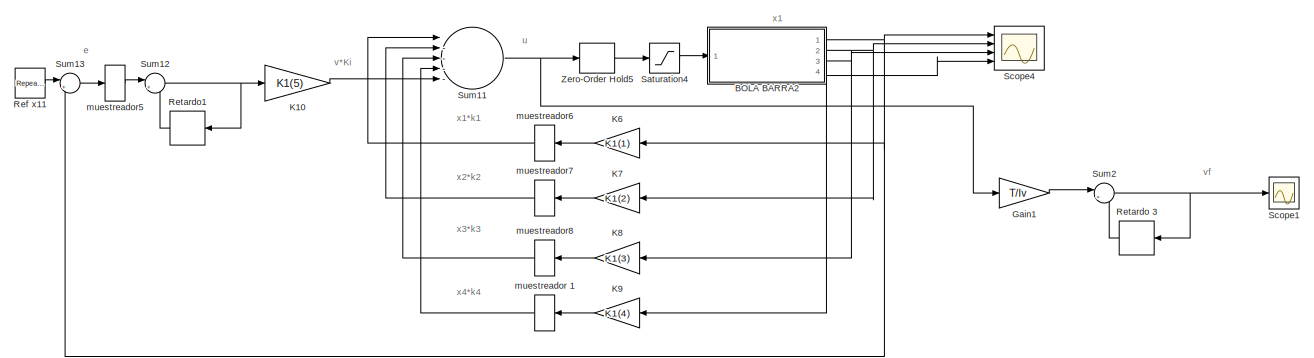
[diagram: root canvas - part 1/2, full width, top band]
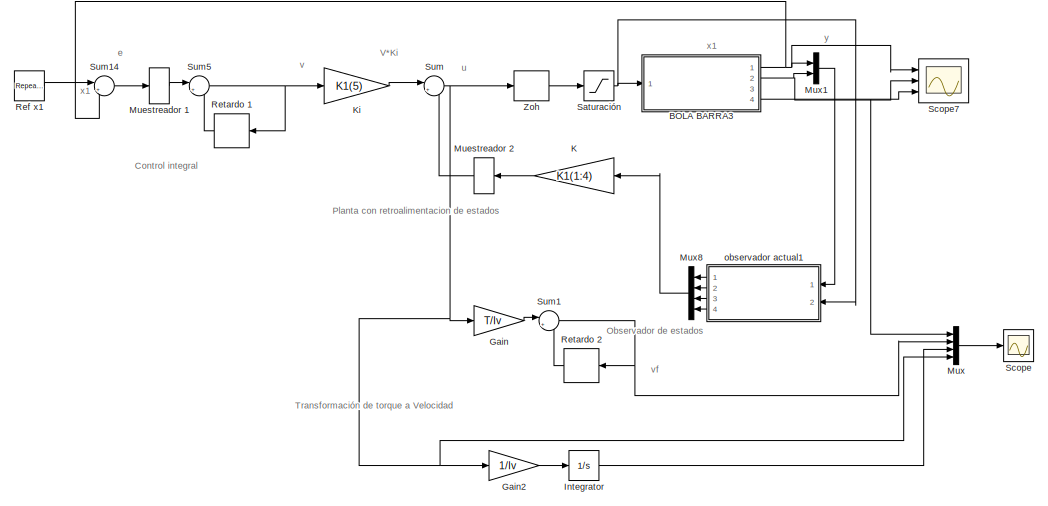
[diagram: root canvas - part 2/2, full width, bottom band]
MODEL slx_6233a8b4bf29
KIND model
CONFIG AbsTol = auto
CONFIG FixedStep = auto
CONFIG MaxStep = auto
CONFIG MinStep = auto
CONFIG RelTol = 1e-3
CONFIG SampleTimeConstraint = Unconstrained
CONFIG Solver = ode45
CONFIG SolverMode = Auto
CONFIG SolverName = ode45
CONFIG StartTime = 0.0
CONFIG StopTime = 180
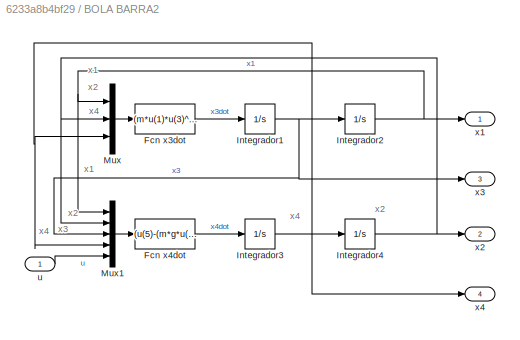
BLOCK [SubSystem] BOLA BARRA2
  Ports = [1, 4]
  RequestExecContextInheritance = off
BLOCK [Fcn] BOLA BARRA2/Fcn x3dot
  Expr = (m*u(1)*u(3)^2-m*g*sin(u(2))/(m+(Ib/R^2)))
BLOCK [Fcn] BOLA BARRA2/Fcn x4dot
  Expr = (u(5)-(m*g*u(1)*cos(u(2)))-(2*m*u(1)*u(3)*u(4)))/((Iv+(m*u(1)^2)))
BLOCK [Integrator] BOLA BARRA2/Integrador1
  Ports = [1, 1]
BLOCK [Integrator] BOLA BARRA2/Integrador2
  InitialCondition = -10.2e-3
  Ports = [1, 1]
BLOCK [Integrator] BOLA BARRA2/Integrador3
  Ports = [1, 1]
BLOCK [Integrator] BOLA BARRA2/Integrador4
  Ports = [1, 1]
BLOCK [Mux] BOLA BARRA2/Mux
  DisplayOption = bar
  Inputs = 3
  Ports = [3, 1]
BLOCK [Mux] BOLA BARRA2/Mux1
  DisplayOption = bar
  Inputs = 5
  Ports = [5, 1]
BLOCK [Inport] BOLA BARRA2/u
  IconDisplay = Port number
BLOCK [Outport] BOLA BARRA2/x1
  IconDisplay = Port number
BLOCK [Outport] BOLA BARRA2/x2
  IconDisplay = Port number
  Port = 2
BLOCK [Outport] BOLA BARRA2/x3
  IconDisplay = Port number
  Port = 3
BLOCK [Outport] BOLA BARRA2/x4
  IconDisplay = Port number
  Port = 4
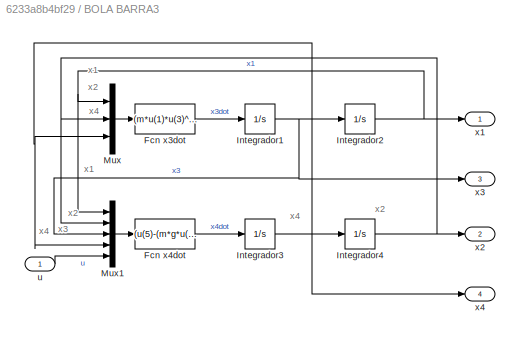
BLOCK [SubSystem] BOLA BARRA3
  Ports = [1, 4]
  RequestExecContextInheritance = off
BLOCK [Fcn] BOLA BARRA3/Fcn x3dot
  Expr = (m*u(1)*u(3)^2-m*g*sin(u(2))/(m+(Ib/R^2)))
BLOCK [Fcn] BOLA BARRA3/Fcn x4dot
  Expr = (u(5)-(m*g*u(1)*cos(u(2)))-(2*m*u(1)*u(3)*u(4)))/((Iv+(m*u(1)^2)))
BLOCK [Integrator] BOLA BARRA3/Integrador1
  Ports = [1, 1]
BLOCK [Integrator] BOLA BARRA3/Integrador2
  InitialCondition = -10.2e-3
  Ports = [1, 1]
BLOCK [Integrator] BOLA BARRA3/Integrador3
  Ports = [1, 1]
BLOCK [Integrator] BOLA BARRA3/Integrador4
  Ports = [1, 1]
BLOCK [Mux] BOLA BARRA3/Mux
  DisplayOption = bar
  Inputs = 3
  Ports = [3, 1]
BLOCK [Mux] BOLA BARRA3/Mux1
  DisplayOption = bar
  Inputs = 5
  Ports = [5, 1]
BLOCK [Inport] BOLA BARRA3/u
  IconDisplay = Port number
BLOCK [Outport] BOLA BARRA3/x1
  IconDisplay = Port number
BLOCK [Outport] BOLA BARRA3/x2
  IconDisplay = Port number
  Port = 2
BLOCK [Outport] BOLA BARRA3/x3
  IconDisplay = Port number
  Port = 3
BLOCK [Outport] BOLA BARRA3/x4
  IconDisplay = Port number
  Port = 4
BLOCK [Gain] Gain
  Gain = T/Iv
  OutDataTypeStr = Inherit: Inherit via internal rule
  ParamDataTypeStr = Inherit: Inherit via internal rule
  SaturateOnIntegerOverflow = off
BLOCK [Gain] Gain1
  Gain = T/Iv
  OutDataTypeStr = Inherit: Inherit via internal rule
  ParamDataTypeStr = Inherit: Inherit via internal rule
  SaturateOnIntegerOverflow = off
BLOCK [Gain] Gain2
  Gain = 1/Iv
  OutDataTypeStr = Inherit: Inherit via internal rule
  ParamDataTypeStr = Inherit: Inherit via internal rule
  SaturateOnIntegerOverflow = off
BLOCK [Integrator] Integrator
  Ports = [1, 1]
BLOCK [Gain] K
  Gain = K1(1:4)
  Multiplication = Matrix(K*u)
  OutDataTypeStr = Inherit: Inherit via internal rule
  ParamDataTypeStr = Inherit: Inherit via internal rule
  SaturateOnIntegerOverflow = off
BLOCK [Gain] K10
  Gain = K1(5)
  OutDataTypeStr = Inherit: Inherit via internal rule
  ParamDataTypeStr = Inherit: Inherit via internal rule
  SaturateOnIntegerOverflow = off
BLOCK [Gain] K6
  Gain = K1(1)
  OutDataTypeStr = Inherit: Inherit via internal rule
  ParamDataTypeStr = Inherit: Inherit via internal rule
  SaturateOnIntegerOverflow = off
BLOCK [Gain] K7
  Gain = K1(2)
  OutDataTypeStr = Inherit: Inherit via internal rule
  ParamDataTypeStr = Inherit: Inherit via internal rule
  SaturateOnIntegerOverflow = off
BLOCK [Gain] K8
  Gain = K1(3)
  OutDataTypeStr = Inherit: Inherit via internal rule
  ParamDataTypeStr = Inherit: Inherit via internal rule
  SaturateOnIntegerOverflow = off
BLOCK [Gain] K9
  Gain = K1(4)
  OutDataTypeStr = Inherit: Inherit via internal rule
  ParamDataTypeStr = Inherit: Inherit via internal rule
  SaturateOnIntegerOverflow = off
BLOCK [Gain] Ki
  Gain = K1(5)
  OutDataTypeStr = Inherit: Inherit via internal rule
  ParamDataTypeStr = Inherit: Inherit via internal rule
  SaturateOnIntegerOverflow = off
BLOCK [DiscreteFilter] Muestreador 1
  Denominator = [1]
  InputPortMap = u0
  Ports = [1, 1]
  SampleTime = T
BLOCK [DiscreteFilter] Muestreador 2
  Denominator = [1]
  InputPortMap = u0
  Ports = [1, 1]
  SampleTime = T
BLOCK [Mux] Mux
  DisplayOption = bar
  Ports = [4, 1]
BLOCK [Mux] Mux1
  DisplayOption = bar
  Inputs = 2
  Ports = [2, 1]
BLOCK [Mux] Mux8
  DisplayOption = bar
  Ports = [4, 1]
BLOCK [Reference] Ref x1  REF=simulink/Sources/Repeating
Sequence
Stair
  ConRadixGroup = Best Precision: Vector-wise
  LockScale = off
  OutDataType = fixdt(0,8)
  OutDataTypeStr = double
  OutMax = []
  OutMin = []
  OutScaling = 2^-12
  OutValues = [0.2  0.4 -0.4 -0.1 -0.3].'
  OutputDataTypeScalingMode = double
  Ports = [0, 1]
  SourceBlock = simulink/Sources/Repeating\nSequence\nStair
  SourceType = Repeating Sequence Stair
  tsamp = 36
BLOCK [Reference] Ref x11  REF=simulink/Sources/Repeating
Sequence
Stair
  ConRadixGroup = Best Precision: Vector-wise
  LockScale = off
  OutDataType = fixdt(0,8)
  OutDataTypeStr = double
  OutMax = []
  OutMin = []
  OutScaling = 2^-12
  OutValues = [0.2  0.4 -0.4 -0.1 -0.3].'
  OutputDataTypeScalingMode = double
  Ports = [0, 1]
  SourceBlock = simulink/Sources/Repeating\nSequence\nStair
  SourceType = Repeating Sequence Stair
  tsamp = 36
BLOCK [Delay] Retardo 1
  DelayLength = 1
  InputPortMap = u0
  Ports = [1, 1]
  SampleTime = T
BLOCK [Delay] Retardo 2
  DelayLength = 1
  InitialCondition = 0
  InputPortMap = u0
  Ports = [1, 1]
  SampleTime = T
BLOCK [Delay] Retardo 3
  DelayLength = 1
  InitialCondition = 0
  InputPortMap = u0
  Ports = [1, 1]
  SampleTime = T
BLOCK [Delay] Retardo1
  DelayLength = 1
  InputPortMap = u0
  Ports = [1, 1]
  SampleTime = T
BLOCK [Saturate] Saturación
  InputPortMap = u0
  LowerLimit = -2.11
  Ports = [1, 1]
  UpperLimit = 2.11
BLOCK [Saturate] Saturation4
  InputPortMap = u0
  LowerLimit = -2.11
  Ports = [1, 1]
  UpperLimit = 2.11
BLOCK [Scope] Scope
  Floating = off
  NumInputPorts = 1
  Ports = [1]
  TimeRange = 16
  YMax = 51.15191986644406
  YMin = 11.15191986644406
BLOCK [Scope] Scope1
  Floating = off
  NumInputPorts = 1
  Ports = [1]
  SaveName = ScopeData1
BLOCK [Scope] Scope4
  DataFormat = StructureWithTime
  Floating = off
  LimitDataPoints = off
  NumInputPorts = 4
  Ports = [4]
  SampleTime = 0
  SaveName = datos
  SaveToWorkspace = on
  YMax = 5~5~5~5
  YMin = -5~-5~-5~-5
BLOCK [Scope] Scope7
  DataFormat = StructureWithTime
  Floating = off
  LimitDataPoints = off
  NumInputPorts = 3
  Ports = [3]
  SampleTime = 0
  SaveName = datos1
  SaveToWorkspace = on
  YMax = 5~5~5
  YMin = -5~-5~-5
BLOCK [Sum] Sum
  IconShape = round
  InputSameDT = off
  Inputs = |+-
  OutDataTypeStr = Inherit: Inherit via internal rule
  Ports = [2, 1]
  SaturateOnIntegerOverflow = off
BLOCK [Sum] Sum1
  IconShape = round
  InputSameDT = off
  Inputs = |++
  OutDataTypeStr = Inherit: Inherit via internal rule
  Ports = [2, 1]
  SaturateOnIntegerOverflow = off
BLOCK [Sum] Sum11
  InputSameDT = off
  Inputs = |----+
  OutDataTypeStr = Inherit: Inherit via internal rule
  Ports = [5, 1]
  SaturateOnIntegerOverflow = off
BLOCK [Sum] Sum12
  IconShape = round
  InputSameDT = off
  Inputs = |++
  OutDataTypeStr = Inherit: Inherit via internal rule
  Ports = [2, 1]
  SaturateOnIntegerOverflow = off
BLOCK [Sum] Sum13
  IconShape = round
  InputSameDT = off
  Inputs = |+-
  OutDataTypeStr = Inherit: Inherit via internal rule
  Ports = [2, 1]
  SaturateOnIntegerOverflow = off
BLOCK [Sum] Sum14
  IconShape = round
  InputSameDT = off
  Inputs = |+-
  OutDataTypeStr = Inherit: Inherit via internal rule
  Ports = [2, 1]
  SaturateOnIntegerOverflow = off
BLOCK [Sum] Sum2
  IconShape = round
  InputSameDT = off
  Inputs = |++
  OutDataTypeStr = Inherit: Inherit via internal rule
  Ports = [2, 1]
  SaturateOnIntegerOverflow = off
BLOCK [Sum] Sum5
  IconShape = round
  InputSameDT = off
  Inputs = |++
  OutDataTypeStr = Inherit: Inherit via internal rule
  Ports = [2, 1]
  SaturateOnIntegerOverflow = off
BLOCK [ZeroOrderHold] Zero-Order Hold5
  SampleTime = T
BLOCK [ZeroOrderHold] Zoh
  SampleTime = T
BLOCK [DiscreteFilter] muestreador 1
  Denominator = [1]
  InputPortMap = u0
  Ports = [1, 1]
  SampleTime = T
BLOCK [DiscreteFilter] muestreador5
  Denominator = [1]
  InputPortMap = u0
  Ports = [1, 1]
  SampleTime = T
BLOCK [DiscreteFilter] muestreador6
  Denominator = [1]
  InputPortMap = u0
  Ports = [1, 1]
  SampleTime = T
BLOCK [DiscreteFilter] muestreador7
  Denominator = [1]
  InputPortMap = u0
  Ports = [1, 1]
  SampleTime = T
BLOCK [DiscreteFilter] muestreador8
  Denominator = [1]
  InputPortMap = u0
  Ports = [1, 1]
  SampleTime = T
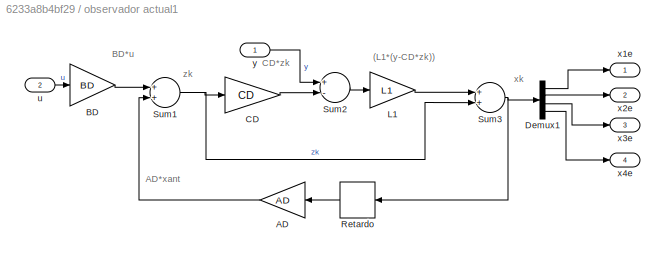
BLOCK [SubSystem] observador actual1
  Ports = [2, 4]
  RequestExecContextInheritance = off
BLOCK [Gain] observador actual1/AD
  Gain = AD
  Multiplication = Matrix(K*u)
  OutDataTypeStr = Inherit: Inherit via internal rule
  ParamDataTypeStr = Inherit: Inherit via internal rule
  SaturateOnIntegerOverflow = off
BLOCK [Gain] observador actual1/BD
  Gain = BD
  Multiplication = Matrix(K*u)
  OutDataTypeStr = Inherit: Inherit via internal rule
  ParamDataTypeStr = Inherit: Inherit via internal rule
  SaturateOnIntegerOverflow = off
BLOCK [Gain] observador actual1/CD
  Gain = CD
  Multiplication = Matrix(K*u)
  OutDataTypeStr = Inherit: Inherit via internal rule
  ParamDataTypeStr = Inherit: Inherit via internal rule
  SaturateOnIntegerOverflow = off
BLOCK [Demux] observador actual1/Demux1
  DisplayOption = bar
  Ports = [1, 4]
BLOCK [Gain] observador actual1/L1
  Gain = L1
  Multiplication = Matrix(K*u)
  OutDataTypeStr = Inherit: Inherit via internal rule
  ParamDataTypeStr = Inherit: Inherit via internal rule
  SaturateOnIntegerOverflow = off
BLOCK [Delay] observador actual1/Retardo
  DelayLength = 1
  InitialCondition = [0 0 0 0]
  InputPortMap = u0
  Ports = [1, 1]
  SampleTime = T
BLOCK [Sum] observador actual1/Sum1
  InputSameDT = off
  OutDataTypeStr = Inherit: Inherit via internal rule
  Ports = [2, 1]
  SaturateOnIntegerOverflow = off
BLOCK [Sum] observador actual1/Sum2
  InputSameDT = off
  Inputs = +-
  OutDataTypeStr = Inherit: Inherit via internal rule
  Ports = [2, 1]
  SaturateOnIntegerOverflow = off
BLOCK [Sum] observador actual1/Sum3
  InputSameDT = off
  OutDataTypeStr = Inherit: Inherit via internal rule
  Ports = [2, 1]
  SaturateOnIntegerOverflow = off
BLOCK [Inport] observador actual1/u
  IconDisplay = Port number
  Port = 2
BLOCK [Outport] observador actual1/x1e
  IconDisplay = Port number
BLOCK [Outport] observador actual1/x2e
  IconDisplay = Port number
  Port = 2
BLOCK [Outport] observador actual1/x3e
  IconDisplay = Port number
  Port = 3
BLOCK [Outport] observador actual1/x4e
  IconDisplay = Port number
  Port = 4
BLOCK [Inport] observador actual1/y
  IconDisplay = Port number
ANNOTATION (root): e
ANNOTATION (root): u
ANNOTATION (root): v
ANNOTATION (root): vf
ANNOTATION (root): x1
ANNOTATION (root): y
ANNOTATION (root): Control integral
ANNOTATION (root): Observador de estados
ANNOTATION (root): Planta con retroalimentacion de estados
ANNOTATION (root): Transformación de torque a Velocidad
ANNOTATION (root): V*Ki
ANNOTATION (root): v*Ki
ANNOTATION (root): x1*k1
ANNOTATION (root): x2*k2
ANNOTATION (root): x3*k3
ANNOTATION (root): x4*k4
ANNOTATION BOLA BARRA2: x1
ANNOTATION BOLA BARRA2: x2
ANNOTATION BOLA BARRA2: x3
ANNOTATION BOLA BARRA2: x4
ANNOTATION BOLA BARRA3: x1
ANNOTATION BOLA BARRA3: x2
ANNOTATION BOLA BARRA3: x3
ANNOTATION BOLA BARRA3: x4
ANNOTATION observador actual1: (L1*(y-CD*zk))
ANNOTATION observador actual1: AD*xant
ANNOTATION observador actual1: BD*u
ANNOTATION observador actual1: CD*zk
ANNOTATION observador actual1: xk
ANNOTATION observador actual1: zk
LINE BOLA BARRA2/Fcn x3dot:1 -> BOLA BARRA2/Integrador1:1
LINE BOLA BARRA2/Fcn x4dot:1 -> BOLA BARRA2/Integrador3:1
NET BOLA BARRA2/Integrador1:1 -> BOLA BARRA2/Integrador2:1, BOLA BARRA2/Mux1:3, BOLA BARRA2/x3:1
NET BOLA BARRA2/Integrador2:1 -> BOLA BARRA2/Mux1:1, BOLA BARRA2/Mux:1, BOLA BARRA2/x1:1
NET BOLA BARRA2/Integrador3:1 -> BOLA BARRA2/Integrador4:1, BOLA BARRA2/Mux1:4, BOLA BARRA2/Mux:3, BOLA BARRA2/x4:1
NET BOLA BARRA2/Integrador4:1 -> BOLA BARRA2/Mux1:2, BOLA BARRA2/Mux:2, BOLA BARRA2/x2:1
LINE BOLA BARRA2/Mux1:1 -> BOLA BARRA2/Fcn x4dot:1
LINE BOLA BARRA2/Mux:1 -> BOLA BARRA2/Fcn x3dot:1
LINE BOLA BARRA2/u:1 -> BOLA BARRA2/Mux1:5
NET BOLA BARRA2:1 -> K6:1, Scope4:1, Sum13:2
NET BOLA BARRA2:2 -> K7:1, Scope4:2
NET BOLA BARRA2:3 -> K8:1, Scope4:3
NET BOLA BARRA2:4 -> K9:1, Scope4:4
LINE BOLA BARRA3/Fcn x3dot:1 -> BOLA BARRA3/Integrador1:1
LINE BOLA BARRA3/Fcn x4dot:1 -> BOLA BARRA3/Integrador3:1
NET BOLA BARRA3/Integrador1:1 -> BOLA BARRA3/Integrador2:1, BOLA BARRA3/Mux1:3, BOLA BARRA3/x3:1
NET BOLA BARRA3/Integrador2:1 -> BOLA BARRA3/Mux1:1, BOLA BARRA3/Mux:1, BOLA BARRA3/x1:1
NET BOLA BARRA3/Integrador3:1 -> BOLA BARRA3/Integrador4:1, BOLA BARRA3/Mux1:4, BOLA BARRA3/Mux:3, BOLA BARRA3/x4:1
NET BOLA BARRA3/Integrador4:1 -> BOLA BARRA3/Mux1:2, BOLA BARRA3/Mux:2, BOLA BARRA3/x2:1
LINE BOLA BARRA3/Mux1:1 -> BOLA BARRA3/Fcn x4dot:1
LINE BOLA BARRA3/Mux:1 -> BOLA BARRA3/Fcn x3dot:1
LINE BOLA BARRA3/u:1 -> BOLA BARRA3/Mux1:5
NET BOLA BARRA3:1 -> Mux1:1, Scope7:1, Sum14:2
NET BOLA BARRA3:2 -> Mux1:2, Scope7:2
NET BOLA BARRA3:4 -> Mux:1, Scope7:3
LINE Gain1:1 -> Sum2:1
LINE Gain2:1 -> Integrator:1
LINE Gain:1 -> Sum1:1
LINE Integrator:1 -> Mux:3
LINE K10:1 -> Sum11:5
LINE K6:1 -> muestreador6:1
LINE K7:1 -> muestreador7:1
LINE K8:1 -> muestreador8:1
LINE K9:1 -> muestreador 1:1
LINE K:1 -> Muestreador 2:1
LINE Ki:1 -> Sum:1
LINE Muestreador 1:1 -> Sum5:1
LINE Muestreador 2:1 -> Sum:2
LINE Mux1:1 -> observador actual1:1
LINE Mux8:1 -> K:1
LINE Mux:1 -> Scope:1
LINE Ref x11:1 -> Sum13:1
LINE Ref x1:1 -> Sum14:1
LINE Retardo 1:1 -> Sum5:2
LINE Retardo 2:1 -> Sum1:2
LINE Retardo 3:1 -> Sum2:2
LINE Retardo1:1 -> Sum12:2
NET Saturación:1 -> BOLA BARRA3:1, observador actual1:2
LINE Saturation4:1 -> BOLA BARRA2:1
NET Sum11:1 -> Gain1:1, Zero-Order Hold5:1
NET Sum12:1 -> K10:1, Retardo1:1
LINE Sum13:1 -> muestreador5:1
LINE Sum14:1 -> Muestreador 1:1
NET Sum1:1 -> Mux:2, Retardo 2:1
NET Sum2:1 -> Retardo 3:1, Scope1:1
NET Sum5:1 -> Ki:1, Retardo 1:1
NET Sum:1 -> Gain2:1, Gain:1, Mux:4, Zoh:1
LINE Zero-Order Hold5:1 -> Saturation4:1
LINE Zoh:1 -> Saturación:1
LINE muestreador 1:1 -> Sum11:4
LINE muestreador5:1 -> Sum12:1
LINE muestreador6:1 -> Sum11:1
LINE muestreador7:1 -> Sum11:2
LINE muestreador8:1 -> Sum11:3
LINE observador actual1/AD:1 -> observador actual1/Sum1:2
LINE observador actual1/BD:1 -> observador actual1/Sum1:1
LINE observador actual1/CD:1 -> observador actual1/Sum2:2
LINE observador actual1/Demux1:1 -> observador actual1/x1e:1
LINE observador actual1/Demux1:2 -> observador actual1/x2e:1
LINE observador actual1/Demux1:3 -> observador actual1/x3e:1
LINE observador actual1/Demux1:4 -> observador actual1/x4e:1
LINE observador actual1/L1:1 -> observador actual1/Sum3:1
LINE observador actual1/Retardo:1 -> observador actual1/AD:1
NET observador actual1/Sum1:1 -> observador actual1/CD:1, observador actual1/Sum3:2
LINE observador actual1/Sum2:1 -> observador actual1/L1:1
NET observador actual1/Sum3:1 -> observador actual1/Demux1:1, observador actual1/Retardo:1
LINE observador actual1/u:1 -> observador actual1/BD:1
LINE observador actual1/y:1 -> observador actual1/Sum2:1
LINE observador actual1:1 -> Mux8:1
LINE observador actual1:2 -> Mux8:2
LINE observador actual1:3 -> Mux8:3
LINE observador actual1:4 -> Mux8:4
note: NET lines group one-source signal fan-out (src -> all destinations, sorted); 1:1 wires keep LINE
